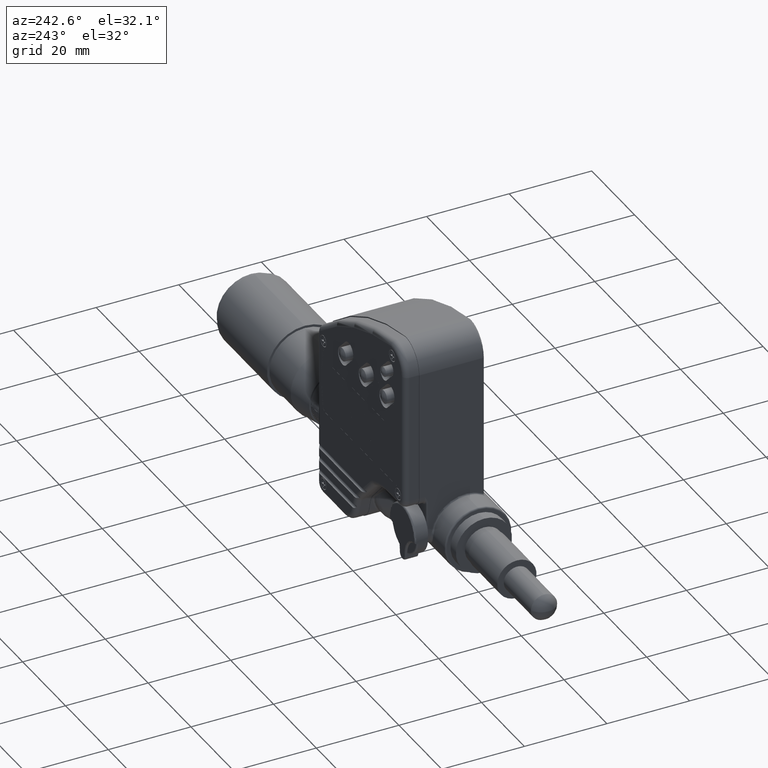
[diagram: clean part render]
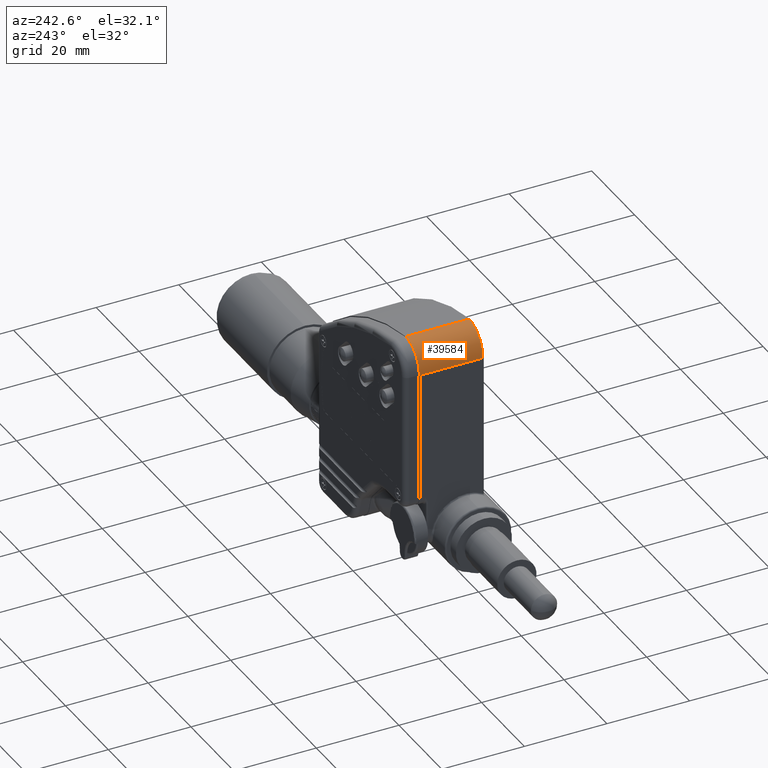
[diagram: same view with one face highlighted and labeled with its STEP entity id]
A machine part, auxiliary view. The second image highlights one B-rep face of the part: STEP entity #39584.
In plain terms, the highlighted cylindrical surface (edge-blend (fillet) strip) has radius 6.35 mm, axis along (0, -1, 0).
Its self-contained STEP definition (entity closure, byte-faithful):
#39558 = EDGE_CURVE ( 'NONE', #39669, #39674, #67871, .T. ) ;
#39574 = VERTEX_POINT ( 'NONE', #67889 ) ;
#39576 = EDGE_CURVE ( 'NONE', #39593, #39669, #67943, .T. ) ;
#39584 = ADVANCED_FACE ( 'NONE', ( #67929 ), #67962, .T. ) ;
#39585 = EDGE_LOOP ( 'NONE', ( #39589, #39673, #39667, #39596 ) ) ;
#39588 = EDGE_CURVE ( 'NONE', #39593, #39574, #67963, .T. ) ;
#39589 = ORIENTED_EDGE ( 'NONE', *, *, #39588, .T. ) ;
#39593 = VERTEX_POINT ( 'NONE', #67951 ) ;
#39596 = ORIENTED_EDGE ( 'NONE', *, *, #39576, .F. ) ;
#39665 = EDGE_CURVE ( 'NONE', #39574, #39674, #68124, .T. ) ;
#39667 = ORIENTED_EDGE ( 'NONE', *, *, #39558, .F. ) ;
#39669 = VERTEX_POINT ( 'NONE', #68119 ) ;
#39673 = ORIENTED_EDGE ( 'NONE', *, *, #39665, .T. ) ;
#39674 = VERTEX_POINT ( 'NONE', #68117 ) ;
#67868 = DIRECTION ( 'NONE',  ( 0.0000000000000000000, -1.000000000000000000, 0.0000000000000000000 ) ) ;
#67869 = VECTOR ( 'NONE', #67868, 39.37007874015748100 ) ;
#67870 = CARTESIAN_POINT ( 'NONE',  ( 0.4799999988337663200, 0.4449999999999999500, 1.892499999999999600 ) ) ;
#67871 = LINE ( 'NONE', #67870, #67869 ) ;
#67889 = CARTESIAN_POINT ( 'NONE',  ( 0.2300000000000000100, -0.1600000000000000000, 1.642499999999999800 ) ) ;
#67929 = FACE_OUTER_BOUND ( 'NONE', #39585, .T. ) ;
#67939 = DIRECTION ( 'NONE',  ( 0.0000000000000000000, 0.0000000000000000000, 1.000000000000000000 ) ) ;
#67940 = DIRECTION ( 'NONE',  ( 0.0000000000000000000, 1.000000000000000000, 0.0000000000000000000 ) ) ;
#67941 = CARTESIAN_POINT ( 'NONE',  ( 0.4800000000000000900, 0.4449999999999999500, 1.642499999999999800 ) ) ;
#67942 = AXIS2_PLACEMENT_3D ( 'NONE', #67941, #67940, #67939 ) ;
#67943 = CIRCLE ( 'NONE', #67942, 0.2500000000000000600 ) ;
#67951 = CARTESIAN_POINT ( 'NONE',  ( 0.2300000000000000100, 0.4449999999999999500, 1.642499999999999800 ) ) ;
#67956 = DIRECTION ( 'NONE',  ( 0.0000000000000000000, -1.000000000000000000, 0.0000000000000000000 ) ) ;
#67957 = VECTOR ( 'NONE', #67956, 39.37007874015748100 ) ;
#67958 = CARTESIAN_POINT ( 'NONE',  ( 0.2300000000000000100, 0.4449999999999999500, 1.642499999999999800 ) ) ;
#67959 = DIRECTION ( 'NONE',  ( 0.0000000000000000000, 0.0000000000000000000, -1.000000000000000000 ) ) ;
#67960 = DIRECTION ( 'NONE',  ( 0.0000000000000000000, -1.000000000000000000, 0.0000000000000000000 ) ) ;
#67961 = AXIS2_PLACEMENT_3D ( 'NONE', #67964, #67960, #67959 ) ;
#67962 = CYLINDRICAL_SURFACE ( 'NONE', #67961, 0.2500000000000000600 ) ;
#67963 = LINE ( 'NONE', #67958, #67957 ) ;
#67964 = CARTESIAN_POINT ( 'NONE',  ( 0.4800000000000000900, 0.4449999999999999500, 1.642499999999999800 ) ) ;
#68117 = CARTESIAN_POINT ( 'NONE',  ( 0.4799999988337663200, -0.1600000000000000000, 1.892499999999999600 ) ) ;
#68119 = CARTESIAN_POINT ( 'NONE',  ( 0.4799999988337663200, 0.4449999999999999500, 1.892499999999999600 ) ) ;
#68120 = DIRECTION ( 'NONE',  ( 0.0000000000000000000, 0.0000000000000000000, 1.000000000000000000 ) ) ;
#68121 = DIRECTION ( 'NONE',  ( 0.0000000000000000000, 1.000000000000000000, 0.0000000000000000000 ) ) ;
#68122 = CARTESIAN_POINT ( 'NONE',  ( 0.4800000000000000900, -0.1600000000000000000, 1.642499999999999800 ) ) ;
#68123 = AXIS2_PLACEMENT_3D ( 'NONE', #68122, #68121, #68120 ) ;
#68124 = CIRCLE ( 'NONE', #68123, 0.2500000000000000600 ) ;